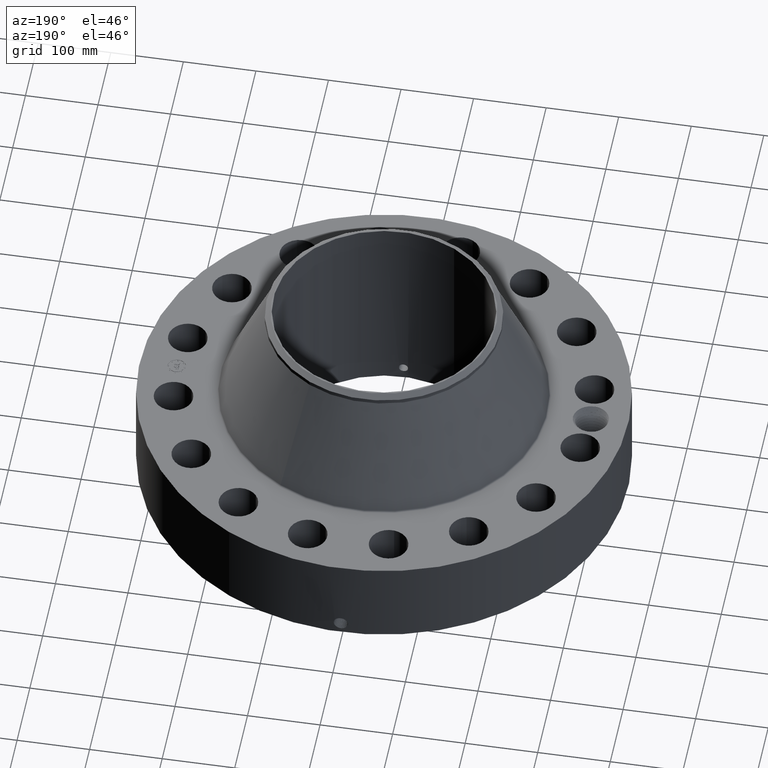
[diagram: clean part render]
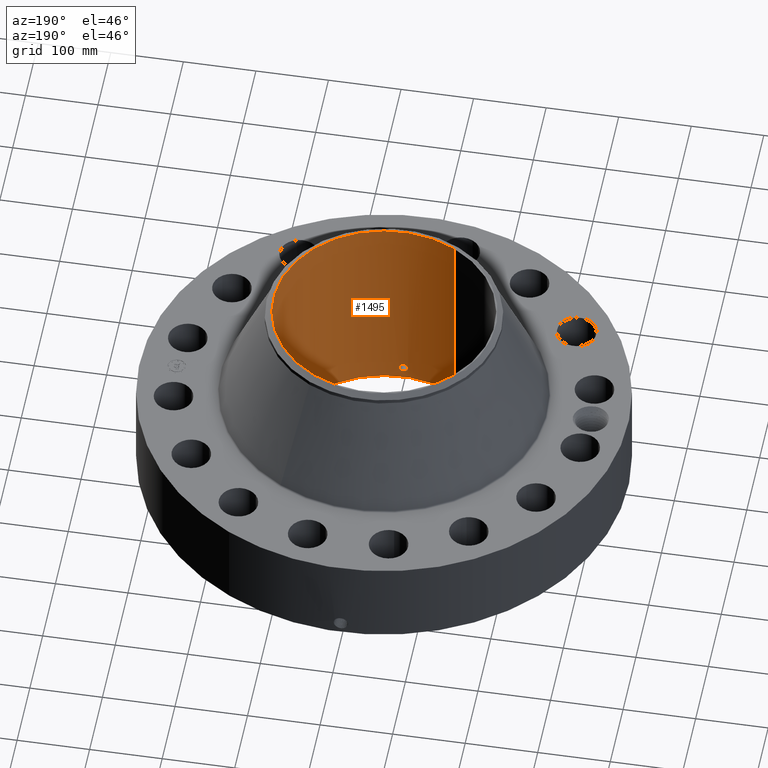
[diagram: same view with one face highlighted and labeled with its STEP entity id]
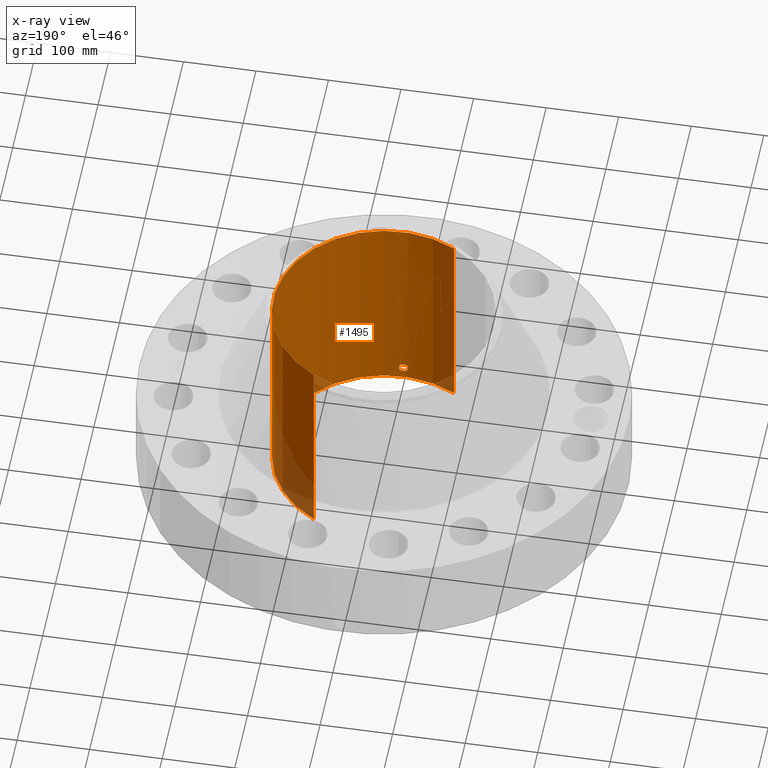
[diagram: x-ray of the same camera — body ghosted, the highlighted face saturated]
A machine part, auxiliary view. The second image highlights one B-rep face of the part: STEP entity #1495.
The next image is the same camera in x-ray: the body ghosted, the highlighted face saturated — about 8% of this face is hidden behind the body in this view.
In plain terms, the highlighted cylindrical surface (partial cylindrical patch) has radius 152.4 mm, axis along (0, 0, -1).
Its self-contained STEP definition (entity closure, byte-faithful):
#262=AXIS2_PLACEMENT_3D('Circle Axis2P3D',#260,#261,$) ;
#1426=AXIS2_PLACEMENT_3D('Cylinder Axis2P3D',#1423,#1424,#1425) ;
#1430=AXIS2_PLACEMENT_3D('Circle Axis2P3D',#1428,#1429,$) ;
#260=CARTESIAN_POINT('Axis2P3D Location',(0.,0.,0.250000000001)) ;
#264=CARTESIAN_POINT('Vertex',(2.87655323164,5.26549537136,0.250000000001)) ;
#266=CARTESIAN_POINT('Vertex',(-2.87655323164,-5.26549537136,0.250000000001)) ;
#1423=CARTESIAN_POINT('Axis2P3D Location',(0.,0.,5.81000000002)) ;
#1428=CARTESIAN_POINT('Axis2P3D Location',(0.,0.,11.37)) ;
#1432=CARTESIAN_POINT('Vertex',(2.87655323164,5.26549537136,11.37)) ;
#1434=CARTESIAN_POINT('Vertex',(-2.87655323164,-5.26549537136,11.37)) ;
#1437=CARTESIAN_POINT('Line Origine',(2.87655323164,5.26549537136,5.81000000002)) ;
#1442=CARTESIAN_POINT('Line Origine',(-2.87655323164,-5.26549537136,5.81000000002)) ;
#1454=CARTESIAN_POINT('Control Point',(0.219395640473,-5.99598745439,0.820143615352)) ;
#1455=CARTESIAN_POINT('Control Point',(0.206921629787,-5.99644388356,0.797310091951)) ;
#1456=CARTESIAN_POINT('Control Point',(0.191477780356,-5.99697649836,0.776100543238)) ;
#1457=CARTESIAN_POINT('Control Point',(0.173343976041,-5.99754416114,0.757028366114)) ;
#1458=CARTESIAN_POINT('Control Point',(0.112128177172,-5.99918620401,0.707544996056)) ;
#1459=CARTESIAN_POINT('Control Point',(0.0349673347365,-6.00025303579,0.684023032337)) ;
#1460=CARTESIAN_POINT('Control Point',(-0.0195757113329,-6.00033259377,0.682387715767)) ;
#1461=CARTESIAN_POINT('Control Point',(-0.124165650307,-5.99915787174,0.707537984119)) ;
#1462=CARTESIAN_POINT('Control Point',(-0.203213264301,-5.99672716909,0.780467335904)) ;
#1463=CARTESIAN_POINT('Control Point',(-0.232185259952,-5.99553089066,0.82669247253)) ;
#1464=CARTESIAN_POINT('Control Point',(-0.255836354935,-5.99454665267,0.90484467845)) ;
#1465=CARTESIAN_POINT('Control Point',(-0.248290142151,-5.99486042488,0.984223021093)) ;
#1466=CARTESIAN_POINT('Control Point',(-0.242056190606,-5.99512342585,1.0107973046)) ;
#1467=CARTESIAN_POINT('Control Point',(-0.232320000164,-5.99551454677,1.03619850293)) ;
#1468=CARTESIAN_POINT('Control Point',(-0.219395640473,-5.99598745439,1.05985638466)) ;
#1469=CARTESIAN_POINT('Vertex',(0.219395640473,-5.99598745439,0.820143615352)) ;
#1471=CARTESIAN_POINT('Vertex',(-0.219395640473,-5.99598745439,1.05985638466)) ;
#1475=CARTESIAN_POINT('Control Point',(-0.219395640473,-5.99598745439,1.05985638466)) ;
#1476=CARTESIAN_POINT('Control Point',(-0.206921629783,-5.99644388356,1.08268990806)) ;
#1477=CARTESIAN_POINT('Control Point',(-0.191477780346,-5.99697649836,1.10389945678)) ;
#1478=CARTESIAN_POINT('Control Point',(-0.173343976053,-5.99754416114,1.12297163388)) ;
#1479=CARTESIAN_POINT('Control Point',(-0.112128177173,-5.99918620401,1.17245500395)) ;
#1480=CARTESIAN_POINT('Control Point',(-0.0349673347192,-6.00025303579,1.19597696767)) ;
#1481=CARTESIAN_POINT('Control Point',(0.0195757113204,-6.00033259377,1.19761228424)) ;
#1482=CARTESIAN_POINT('Control Point',(0.124165650324,-5.99915787174,1.17246201589)) ;
#1483=CARTESIAN_POINT('Control Point',(0.203213264333,-5.99672716909,1.09953266407)) ;
#1484=CARTESIAN_POINT('Control Point',(0.232185259939,-5.99553089066,1.05330752752)) ;
#1485=CARTESIAN_POINT('Control Point',(0.255836354922,-5.99454665267,0.975155321627)) ;
#1486=CARTESIAN_POINT('Control Point',(0.248290142161,-5.99486042488,0.895776979017)) ;
#1487=CARTESIAN_POINT('Control Point',(0.242056190569,-5.99512342585,0.869202695312)) ;
#1488=CARTESIAN_POINT('Control Point',(0.232320000139,-5.99551454677,0.843801497031)) ;
#1489=CARTESIAN_POINT('Control Point',(0.219395640473,-5.99598745439,0.820143615352)) ;
#261=DIRECTION('Axis2P3D Direction',(0.,0.,-0.0393700787402)) ;
#1424=DIRECTION('Axis2P3D Direction',(0.,0.,-0.0393700787402)) ;
#1425=DIRECTION('Axis2P3D XDirection',(-0.0188750212049,-0.0345504945626,0.)) ;
#1429=DIRECTION('Axis2P3D Direction',(0.,0.,-0.0393700787402)) ;
#1438=DIRECTION('Vector Direction',(0.,0.,-0.0393700787402)) ;
#1443=DIRECTION('Vector Direction',(0.,0.,-0.0393700787402)) ;
#1439=VECTOR('Line Direction',#1438,0.0393700787402) ;
#1444=VECTOR('Line Direction',#1443,0.0393700787402) ;
#1448=ORIENTED_EDGE('',*,*,#1436,.F.) ;
#1449=ORIENTED_EDGE('',*,*,#1441,.T.) ;
#1450=ORIENTED_EDGE('',*,*,#268,.T.) ;
#1451=ORIENTED_EDGE('',*,*,#1446,.F.) ;
#1492=ORIENTED_EDGE('',*,*,#1473,.F.) ;
#1493=ORIENTED_EDGE('',*,*,#1490,.F.) ;
#1494=FACE_BOUND('',#1491,.T.) ;
#1495=ADVANCED_FACE('PartBody',(#1452,#1494),#1427,.F.) ;
#1453=B_SPLINE_CURVE_WITH_KNOTS('',5,(#1454,#1455,#1456,#1457,#1458,#1459,#1460,#1461,#1462,#1463,#1464,#1465,#1466,#1467,#1468),.UNSPECIFIED.,.F.,.U.,(6,3,3,3,6),(0.,4.67380382059,14.0224404774,23.3724485697,28.2149906534),.UNSPECIFIED.) ;
#1474=B_SPLINE_CURVE_WITH_KNOTS('',5,(#1475,#1476,#1477,#1478,#1479,#1480,#1481,#1482,#1483,#1484,#1485,#1486,#1487,#1488,#1489),.UNSPECIFIED.,.F.,.U.,(6,3,3,3,6),(0.,4.67380382213,14.0224404803,23.3724485762,28.2149906506),.UNSPECIFIED.) ;
#263=CIRCLE('generated circle',#262,6.00000000002) ;
#1431=CIRCLE('generated circle',#1430,6.00000000002) ;
#1427=CYLINDRICAL_SURFACE('generated cylinder',#1426,6.00000000002) ;
#268=EDGE_CURVE('',#265,#267,#263,.T.) ;
#1436=EDGE_CURVE('',#1433,#1435,#1431,.T.) ;
#1441=EDGE_CURVE('',#1433,#265,#1440,.T.) ;
#1446=EDGE_CURVE('',#1435,#267,#1445,.T.) ;
#1473=EDGE_CURVE('',#1470,#1472,#1453,.T.) ;
#1490=EDGE_CURVE('',#1472,#1470,#1474,.T.) ;
#1447=EDGE_LOOP('',(#1448,#1449,#1450,#1451)) ;
#1491=EDGE_LOOP('',(#1492,#1493)) ;
#1452=FACE_OUTER_BOUND('',#1447,.T.) ;
#1440=LINE('Line',#1437,#1439) ;
#1445=LINE('Line',#1442,#1444) ;
#265=VERTEX_POINT('',#264) ;
#267=VERTEX_POINT('',#266) ;
#1433=VERTEX_POINT('',#1432) ;
#1435=VERTEX_POINT('',#1434) ;
#1470=VERTEX_POINT('',#1469) ;
#1472=VERTEX_POINT('',#1471) ;